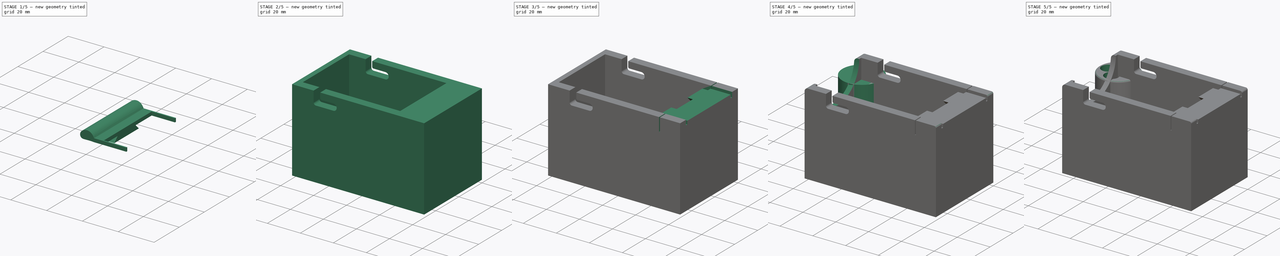
[diagram: build sequence overview — one tinted view per stage of 5, left to right]
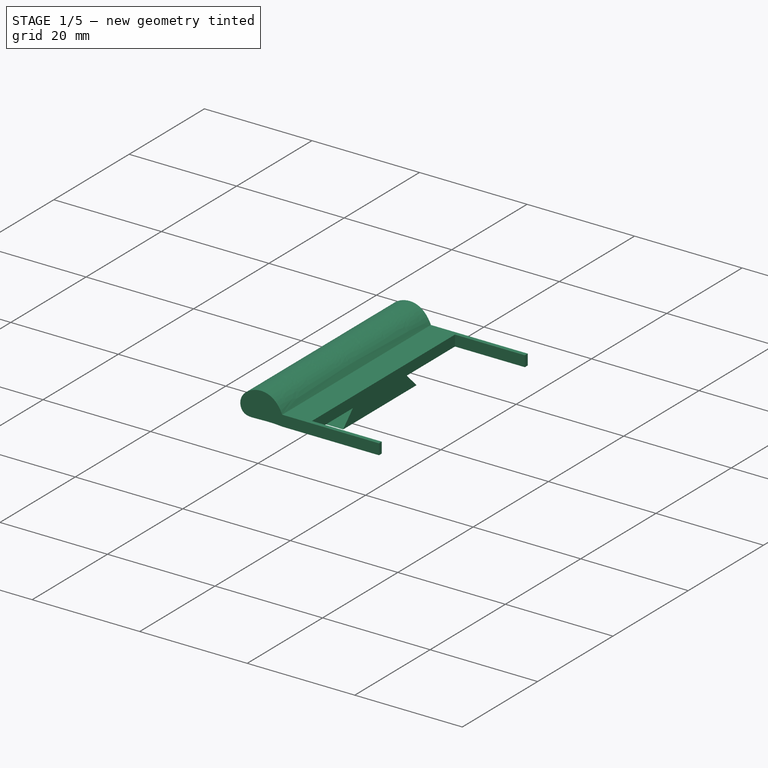
[diagram: stage 1 of 5 — iso view after this stage's code; geometry added in this stage tinted green]
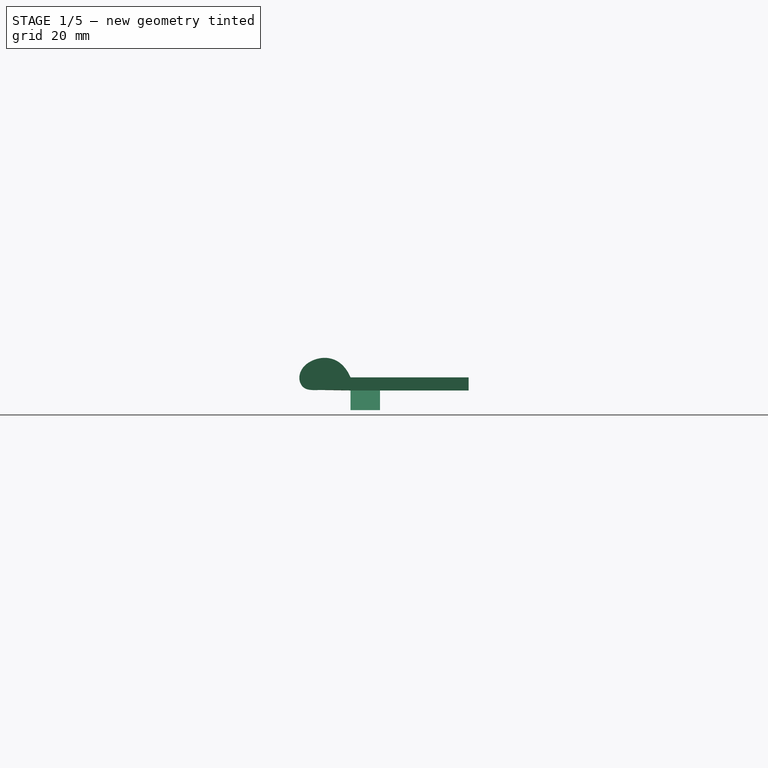
[diagram: stage 1 of 5 — front view after this stage's code; geometry added in this stage tinted green]
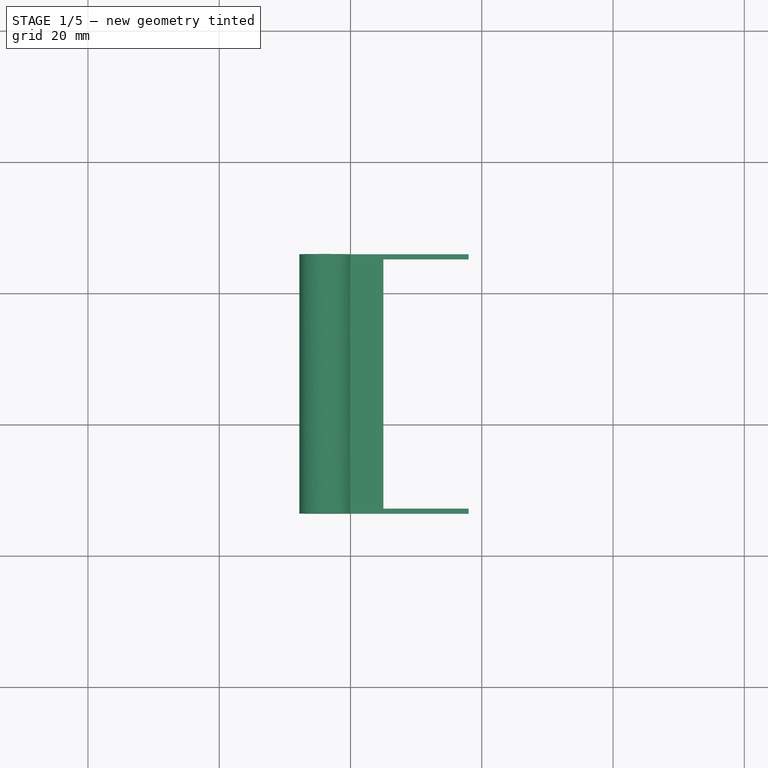
[diagram: stage 1 of 5 — top view after this stage's code; geometry added in this stage tinted green]
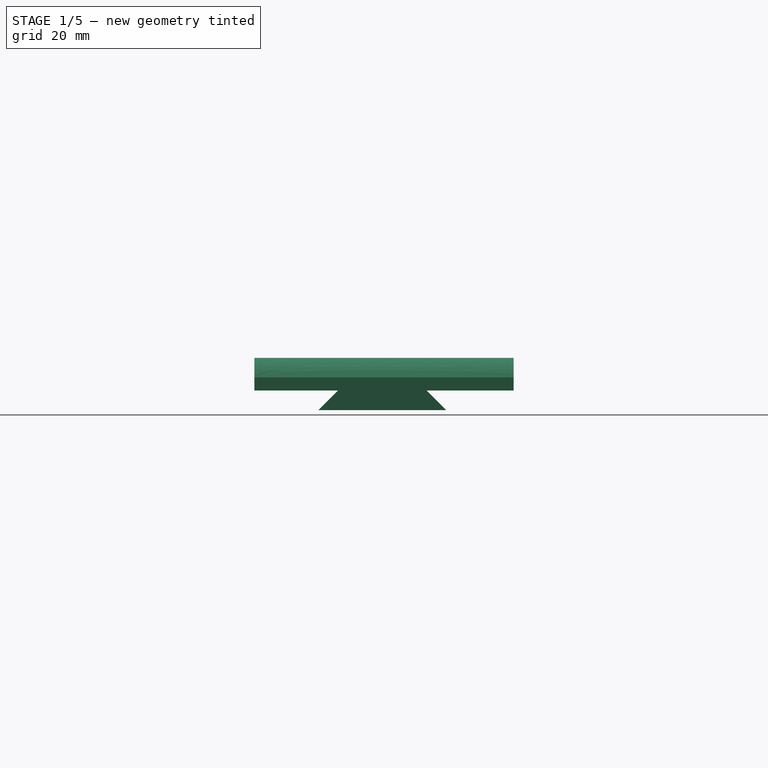
[diagram: stage 1 of 5 — right view after this stage's code; geometry added in this stage tinted green]
FCSTD DOCUMENT  (FreeCAD 1.0R39285 (Git))
Label: tape_cutter
License: All rights reserved
objects: Sketcher::SketchObject×16, PartDesign::Pad×10, PartDesign::Pocket×6, PartDesign::Fillet×3, PartDesign::Body×3, PartDesign::Plane×2, PartDesign::Mirrored×1
note: 96 computed .brp shape members not serialized (recipe doc carries the construction recipe); baked Part::Feature solids carry a one-line shape summary decoded from their .brp

FEATURE [Sketcher::SketchObject] Sketch020
  ArcFitTolerance = 1e-06
  AttachmentSupport = -> [YZ_Plane003]
  FullyConstrained = false
  MakeInternals = false
  MapMode = 5
  Placement = pos=(0,0,0) rot=(0.57735,0.57735,0.57735;2.0944rad)
  sketch-geometry (8):
    g0: LineSegment StartX=-4.33445 StartY=0 StartZ=0 EndX=-23.8345 EndY=0 EndZ=0
    g1: LineSegment StartX=-23.8345 StartY=0 StartZ=0 EndX=-20.8345 EndY=3 EndZ=0
    g2: LineSegment StartX=-20.8345 StartY=3 StartZ=0 EndX=-33.5845 EndY=3 EndZ=0
    g3: LineSegment StartX=-33.5845 StartY=3 StartZ=0 EndX=-33.5845 EndY=5 EndZ=0
    g4: LineSegment StartX=-33.5845 StartY=5 StartZ=0 EndX=5.91555 EndY=5 EndZ=0
    g5: LineSegment StartX=5.91555 StartY=5 StartZ=0 EndX=5.91555 EndY=3 EndZ=0
    g6: LineSegment StartX=5.91555 StartY=3 StartZ=0 EndX=-7.33445 EndY=3 EndZ=0
    g7: LineSegment StartX=-7.33445 StartY=3 StartZ=0 EndX=-4.33445 EndY=0 EndZ=0
  constraints (23):
    c: PointOnObject(g0,g-1)
    c: PointOnObject(g0,g-1)
    c: Coincident(g0,g1)
    c: Coincident(g1,g2)
    c: Horizontal(g2)
    c: Coincident(g2,g3)
    c: Horizontal(g4)
    c: Coincident(g4,g5)
    c: Coincident(g5,g6)
    c: Horizontal(g6)
    c: Coincident(g6,g7)
    c: Coincident(g7,g0)
    c: DistanceX(g0,g0) = 19.5
    c: DistanceX(g4,g4) = 39.5
    c: DistanceX(g3,g0) = 9.75
    c: Vertical(g5)
    c: Vertical(g3)
    c: Angle(g0,g1) = 0.785398
    c: Angle(g7,g0) = 0.785398
    c: Distance(g4,g6) = 2
    c: Distance(g2,g0) = 3
    c: Coincident(g4,g3)
    c: Distance(g4,g2) = 2
FEATURE [PartDesign::Pad] Pad009
  Direction = (1,0,0)
  Length = 4.5
  Length2 = 10
  Placement = pos=(0,0,0) rot=(1,1,1;2.0944rad)
  Profile = -> Sketch020
  ReferenceAxis = -> Sketch020 [N_Axis]
  Refine = true
  Suppressed = false
  Type = 0
FEATURE [Sketcher::SketchObject] Sketch021
  ArcFitTolerance = 1e-06
  AttachmentSupport = -> [Pad009]
  ExternalGeometry = -> [Pad009]
  FullyConstrained = true
  MakeInternals = false
  MapMode = 5
  Placement = pos=(4.5,-1e-15,5e-16) rot=(0.57735,0.57735,0.57735;2.0944rad)
  sketch-geometry (4):
    g0: LineSegment StartX=5.91555 StartY=5 StartZ=0 EndX=-33.5845 EndY=5 EndZ=0
    g1: LineSegment StartX=-33.5845 StartY=5 StartZ=0 EndX=-33.5845 EndY=3 EndZ=0
    g2: LineSegment StartX=-33.5845 StartY=3 StartZ=0 EndX=5.91555 EndY=3 EndZ=0
    g3: LineSegment StartX=5.91555 StartY=3 StartZ=0 EndX=5.91555 EndY=5 EndZ=0
  constraints (10):
    c: Coincident(g0,g1)
    c: Coincident(g1,g2)
    c: Coincident(g2,g3)
    c: Coincident(g3,g0)
    c: Horizontal(g0)
    c: Horizontal(g2)
    c: Vertical(g1)
    c: Vertical(g3)
    c: Coincident(g0,g-4)
    c: Coincident(g1,g-6)
FEATURE [PartDesign::Pad] Pad010
  BaseFeature = -> Pad009
  Direction = (1,0,0)
  Length = 0.5
  Length2 = 10
  Placement = pos=(0,0,0) rot=(1,1,1;2.0944rad)
  Profile = -> Sketch021
  ReferenceAxis = -> Sketch021 [N_Axis]
  Refine = true
  Suppressed = false
  Type = 0
FEATURE [Sketcher::SketchObject] Sketch022
  ArcFitTolerance = 1e-06
  AttachmentSupport = -> [Pad010]
  ExternalGeometry = -> [Pad010]
  FullyConstrained = true
  MakeInternals = false
  MapMode = 5
  Placement = pos=(5,-1.1e-15,6e-16) rot=(0.57735,0.57735,0.57735;2.0944rad)
  sketch-geometry (8):
    g0: LineSegment StartX=-33.5845 StartY=5 StartZ=0 EndX=-32.8345 EndY=5 EndZ=0
    g1: LineSegment StartX=-33.5845 StartY=5 StartZ=0 EndX=-33.5845 EndY=3 EndZ=0
    g2: LineSegment StartX=-32.8345 StartY=5 StartZ=0 EndX=-32.8345 EndY=3 EndZ=0
    g3: LineSegment StartX=-32.8345 StartY=3 StartZ=0 EndX=-33.5845 EndY=3 EndZ=0
    g4: LineSegment StartX=5.91555 StartY=5 StartZ=0 EndX=5.16555 EndY=5 EndZ=0
    g5: LineSegment StartX=5.16555 StartY=5 StartZ=0 EndX=5.16555 EndY=3 EndZ=0
    g6: LineSegment StartX=5.16555 StartY=3 StartZ=0 EndX=5.91555 EndY=3 EndZ=0
    g7: LineSegment StartX=5.91555 StartY=3 StartZ=0 EndX=5.91555 EndY=5 EndZ=0
  constraints (22):
    c: PointOnObject(g0,g-3)
    c: Coincident(g0,g-4)
    c: Coincident(g1,g0)
    c: Coincident(g0,g2)
    c: Vertical(g2)
    c: Coincident(g2,g3)
    c: Coincident(g3,g1)
    c: Horizontal(g3)
    c: Distance(g1,g1) = 2
    c: DistanceX(g0,g0) = 0.75
    c: Coincident(g4,g5)
    c: Coincident(g5,g6)
    c: Coincident(g6,g7)
    c: Coincident(g7,g4)
    c: Horizontal(g4)
    c: Horizontal(g6)
    c: Vertical(g5)
    c: Vertical(g7)
    c: Coincident(g4,g-3)
    c: DistanceX(g4,g4) = 0.75
    c: Distance(g5,g5) = 2
    c: Distance(g3,g3) = 0.75
FEATURE [PartDesign::Pad] Pad011
  BaseFeature = -> Pad010
  Direction = (1,0,0)
  Length = 13
  Length2 = 10
  Placement = pos=(0,0,0) rot=(1,1,1;2.0944rad)
  Profile = -> Sketch022
  ReferenceAxis = -> Sketch022 [N_Axis]
  Refine = true
  Suppressed = false
  Type = 0
FEATURE [PartDesign::Body] Body  label="main"
  AllowCompound = true
  Group = -> [Sketch,Pad,Sketch001,Pad001,Sketch002,Pad002,Sketch003,Pocket,DatumPlane,Sketch017,Pocket007,Sketch018,Pocket008,Sketch019,Pocket009,Sketch023,Pad012,Sketch025,Pocket010,Fillet,Fillet011]
  Origin = -> Origin
  Placement = pos=(218.63,0,-34.33) rot=(0,0,1;0rad)
  Tip = -> Fillet011
FEATURE [Sketcher::SketchObject] Sketch026
  ArcFitTolerance = 1e-06
  AttachmentSupport = -> [Pad011]
  ExternalGeometry = -> [Pad011]
  FullyConstrained = false
  MakeInternals = false
  MapMode = 5
  Placement = pos=(0,-33.5845,3.7e-15) rot=(0.57735,0.57735,-0.57735;2.0944rad)
  sketch-geometry (12):
    g0: LineSegment StartX=-5 StartY=-5e-15 StartZ=0 EndX=-3 EndY=-3e-15 EndZ=0
    g1-g6: Circle [constr] x6 (B-spline internal-alignment scaffolding for g7; pole/knot coordinates omitted)
    g7: BSplineCurve PolesCount=6 KnotsCount=4 Degree=3 IsPeriodic=0
    g8-g11: GeomPoint [constr] x4 (B-spline internal-alignment scaffolding for g7; pole/knot coordinates omitted)
  constraints (8):
    c: Coincident(g0,g-3)
    c: Coincident(g0,g-4)
    c: Weight(g1) = 1
    c: Equal(g1, g2-g6) x5
    c: InternalAlignment(g1-g6 -> g7) x6
    c: InternalAlignment(g8-g11 -> g7) x4
    c: Coincident(g1,g0)
    c: Coincident(g6,g0)
FEATURE [PartDesign::Pad] Pad013
  BaseFeature = -> Pad011
  Direction = (0,-1,0)
  Length = 39.5
  Length2 = 10
  Placement = pos=(0,0,0) rot=(1,1,1;2.0944rad)
  Profile = -> Sketch026
  ReferenceAxis = -> Sketch026 [N_Axis]
  Refine = true
  Reversed = true
  Suppressed = false
  Type = 0
FEATURE [PartDesign::Body] Body003  label="locker"
  AllowCompound = false
  Group = -> [Sketch020,Pad009,Sketch021,Pad010,Sketch022,Pad011,Sketch026,Pad013]
  Origin = -> Origin003
  Placement = pos=(280.67,-11.14,9.69) rot=(0,0,1;0rad)
  Tip = -> Pad013
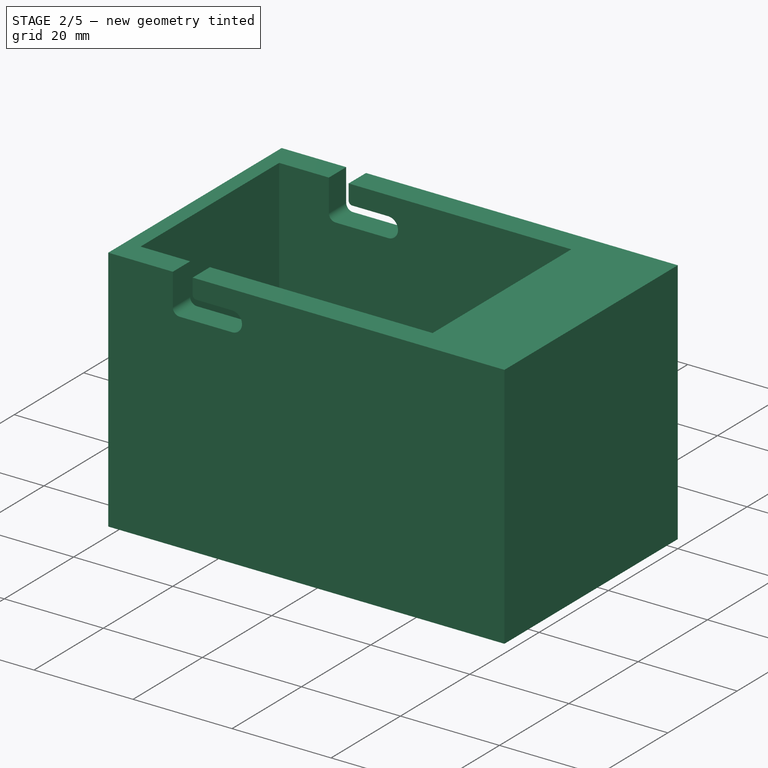
[diagram: stage 2 of 5 — iso view after this stage's code; geometry added in this stage tinted green]
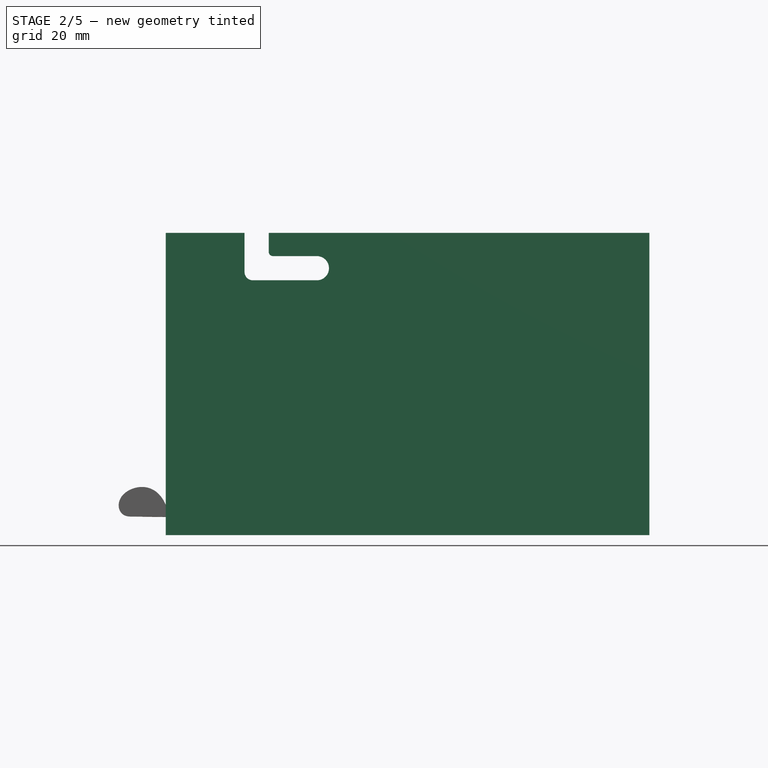
[diagram: stage 2 of 5 — front view after this stage's code; geometry added in this stage tinted green]
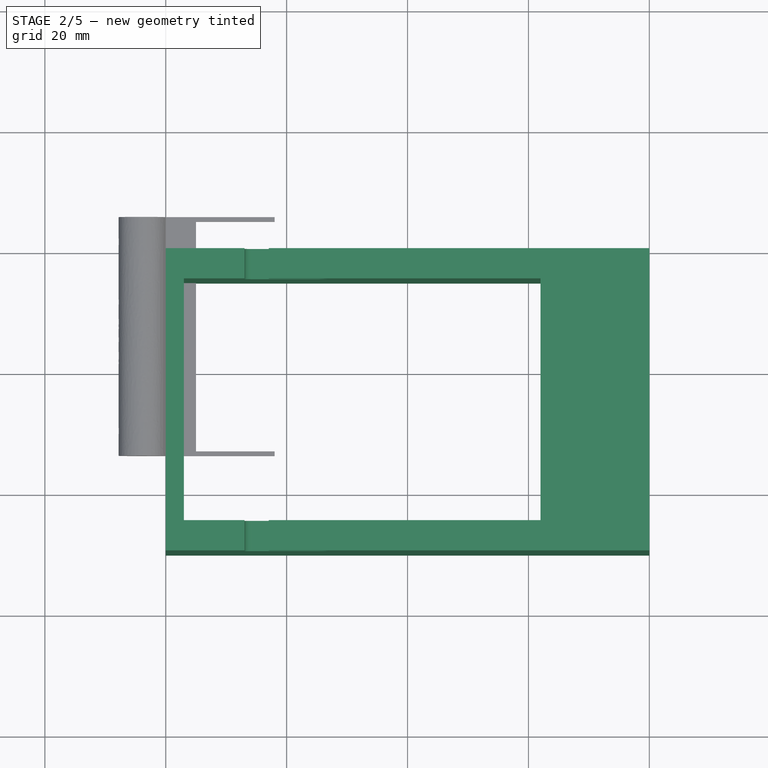
[diagram: stage 2 of 5 — top view after this stage's code; geometry added in this stage tinted green]
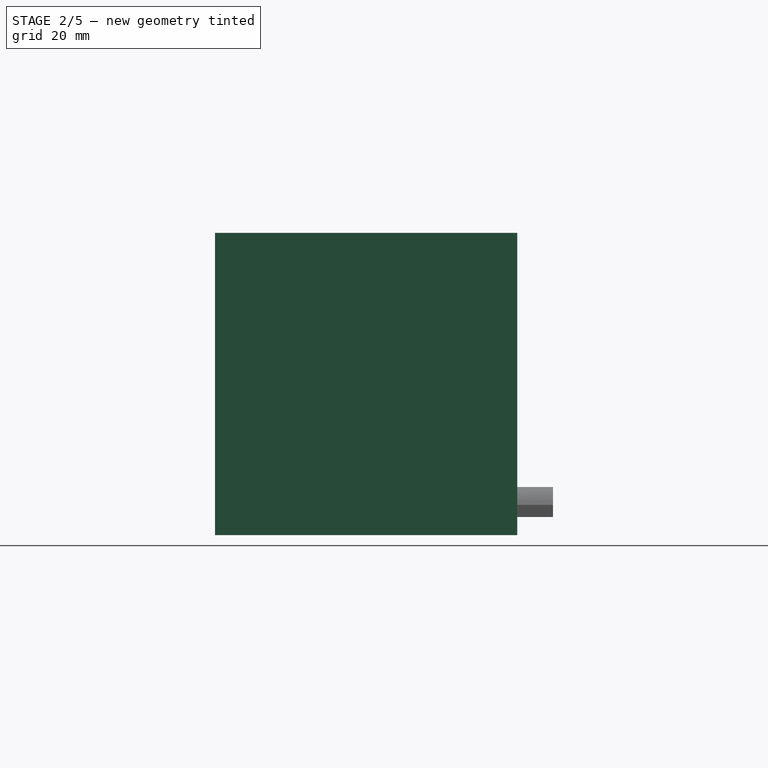
[diagram: stage 2 of 5 — right view after this stage's code; geometry added in this stage tinted green]
FEATURE [Sketcher::SketchObject] Sketch
  ArcFitTolerance = 1e-06
  AttachmentSupport = -> [XZ_Plane]
  FullyConstrained = true
  MakeInternals = false
  MapMode = 5
  Placement = pos=(0,0,0) rot=(1,0,0;1.5708rad)
  sketch-geometry (4):
    g0: LineSegment StartX=0 StartY=0 StartZ=0 EndX=80 EndY=0 EndZ=0
    g1: LineSegment StartX=80 StartY=0 StartZ=0 EndX=80 EndY=50 EndZ=0
    g2: LineSegment StartX=80 StartY=50 StartZ=0 EndX=0 EndY=50 EndZ=0
    g3: LineSegment StartX=0 StartY=50 StartZ=0 EndX=0 EndY=0 EndZ=0
  constraints (11):
    c: Coincident(g0,g1)
    c: Coincident(g1,g2)
    c: Coincident(g2,g3)
    c: Coincident(g3,g0)
    c: Horizontal(g0)
    c: Horizontal(g2)
    c: Vertical(g1)
    c: Vertical(g3)
    c: Distance(g1,g3) = 80
    c: Distance(g0,g2) = 50
    c: Coincident(g0,g-1)
FEATURE [PartDesign::Pad] Pad
  Direction = (0,-1,2e-16)
  Length = 5
  Length2 = 10
  Placement = pos=(0,0,0) rot=(1,0,0;1.5708rad)
  Profile = -> Sketch
  ReferenceAxis = -> Sketch [N_Axis]
  Refine = true
  Suppressed = false
  Type = 0
FEATURE [Sketcher::SketchObject] Sketch001
  ArcFitTolerance = 1e-06
  AttachmentSupport = -> [Pad]
  ExternalGeometry = -> [Pad]
  FullyConstrained = true
  MakeInternals = false
  MapMode = 5
  Placement = pos=(0,-5,0) rot=(1,0,0;1.5708rad)
  sketch-geometry (15):
    g0: LineSegment StartX=0 StartY=50 StartZ=0 EndX=0 EndY=0 EndZ=0
    g1: LineSegment StartX=0 StartY=0 StartZ=0 EndX=3 EndY=0 EndZ=0
    g2: LineSegment StartX=3 StartY=0 StartZ=0 EndX=3 EndY=50 EndZ=0
    g3: LineSegment StartX=3 StartY=50 StartZ=0 EndX=0 EndY=50 EndZ=0
    g4: LineSegment StartX=62 StartY=50 StartZ=0 EndX=80 EndY=50 EndZ=0
    g5: LineSegment StartX=80 StartY=50 StartZ=0 EndX=80 EndY=0 EndZ=0
    g6: LineSegment StartX=77 StartY=0 StartZ=0 EndX=77 EndY=15 EndZ=0
    g7: LineSegment StartX=77 StartY=0 StartZ=0 EndX=80 EndY=0 EndZ=0
    g8: Circle [constr] CenterX=62 CenterY=41 CenterZ=0 NormalX=0 NormalY=0 NormalZ=1 AngleXU=0 Radius=1
    g9: Circle [constr] CenterX=77 CenterY=41 CenterZ=0 NormalX=0 NormalY=0 NormalZ=1 AngleXU=0 Radius=1
    g10: Circle [constr] CenterX=77 CenterY=15 CenterZ=0 NormalX=0 NormalY=0 NormalZ=1 AngleXU=0 Radius=1
    g11: BSplineCurve PolesCount=3 KnotsCount=2 Degree=2 IsPeriodic=0
    g12: GeomPoint [constr] X=62 Y=41 Z=0
    g13: GeomPoint [constr] X=77 Y=15 Z=0
    g14: LineSegment StartX=62 StartY=50 StartZ=0 EndX=62 EndY=41 EndZ=0
  constraints (38):
    c: Coincident(g0,g1)
    c: Coincident(g1,g2)
    c: Coincident(g2,g3)
    c: Coincident(g3,g0)
    c: Vertical(g0)
    c: Vertical(g2)
    c: Horizontal(g1)
    c: Horizontal(g3)
    c: Distance(g0,g2) = 3
    c: Coincident(g0,g-3)
    c: PointOnObject(g1,g-1)
    c: PointOnObject(g4,g-3)
    c: PointOnObject(g5,g-1)
    c: Vertical(g5)
    c: PointOnObject(g6,g-1)
    c: Vertical(g6)
    c: Distance(g5,g6) = 3
    c: DistanceX(g4,g-3) = 18
    c: Coincident(g7,g6)
    c: Coincident(g7,g5)
    c: Weight(g8) = 1
    c: Equal(g8,g9)
    c: Equal(g8,g10)
    c: InternalAlignment(g8,g11)
    c: InternalAlignment(g9,g11)
    c: InternalAlignment(g10,g11)
    c: InternalAlignment(g12,g11)
    c: InternalAlignment(g13,g11)
    c: Tangent(g11,g6) = 1.5708
    c: Coincident(g11,g6)
    c: Horizontal(g9,g11)
    c: Distance(g6,g6) = 15
    c: Coincident(g14,g4)
    c: Coincident(g14,g11)
    c: Vertical(g14)
    c: Coincident(g4,g5)
    c: Coincident(g4,g-3)
    c: DistanceY(g14,g14) = 9
FEATURE [PartDesign::Pad] Pad001
  BaseFeature = -> Pad
  Direction = (0,-1,2e-16)
  Length = 40
  Length2 = 10
  Placement = pos=(0,0,0) rot=(1,0,0;1.5708rad)
  Profile = -> Sketch001
  ReferenceAxis = -> Sketch001 [N_Axis]
  Refine = true
  Suppressed = false
  Type = 0
FEATURE [Sketcher::SketchObject] Sketch002
  ArcFitTolerance = 1e-06
  AttachmentSupport = -> [Pad001]
  ExternalGeometry = -> [Pad001]
  FullyConstrained = true
  MakeInternals = false
  MapMode = 5
  Placement = pos=(0,-45,1e-14) rot=(1,0,0;1.5708rad)
  sketch-geometry (4):
    g0: LineSegment StartX=0 StartY=50 StartZ=0 EndX=0 EndY=0 EndZ=0
    g1: LineSegment StartX=0 StartY=0 StartZ=0 EndX=80 EndY=0 EndZ=0
    g2: LineSegment StartX=80 StartY=0 StartZ=0 EndX=80 EndY=50 EndZ=0
    g3: LineSegment StartX=80 StartY=50 StartZ=0 EndX=0 EndY=50 EndZ=0
  constraints (10):
    c: Coincident(g0,g1)
    c: Coincident(g1,g2)
    c: Coincident(g2,g3)
    c: Coincident(g3,g0)
    c: Vertical(g0)
    c: Vertical(g2)
    c: Horizontal(g1)
    c: Horizontal(g3)
    c: Coincident(g0,g-3)
    c: Coincident(g1,g-4)
FEATURE [PartDesign::Pad] Pad002
  BaseFeature = -> Pad001
  Direction = (0,-1,2e-16)
  Length = 5
  Length2 = 10
  Placement = pos=(0,0,0) rot=(1,0,0;1.5708rad)
  Profile = -> Sketch002
  ReferenceAxis = -> Sketch002 [N_Axis]
  Refine = true
  Suppressed = false
  Type = 0
FEATURE [Sketcher::SketchObject] Sketch003
  ArcFitTolerance = 1e-06
  AttachmentSupport = -> [Pad002]
  ExternalGeometry = -> [Pad002]
  FullyConstrained = false
  MakeInternals = false
  MapMode = 5
  Placement = pos=(0,-50,1.42e-14) rot=(1,0,0;1.5708rad)
  sketch-geometry (11):
    g0: GeomPoint [constr] X=25 Y=44.1581 Z=0
    g1: ArcOfCircle CenterX=25 CenterY=44.1581 CenterZ=0 NormalX=0 NormalY=0 NormalZ=1 AngleXU=0 Radius=2 StartAngle=4.71239 EndAngle=7.85398
    g2: LineSegment StartX=13.0319 StartY=50 StartZ=0 EndX=17.0319 EndY=50 EndZ=0
    g3: LineSegment StartX=13.0319 StartY=50 StartZ=0 EndX=13.0319 EndY=43.5252 EndZ=0
    g4: LineSegment StartX=14.3991 StartY=42.1581 StartZ=0 EndX=25 EndY=42.1581 EndZ=0
    g5: LineSegment StartX=17.0319 StartY=50 StartZ=0 EndX=17.0319 EndY=46.8676 EndZ=0
    g6: LineSegment StartX=17.7414 StartY=46.1581 StartZ=0 EndX=25 EndY=46.1581 EndZ=0
    g7: ArcOfCircle CenterX=17.7414 CenterY=46.8676 CenterZ=0 NormalX=0 NormalY=0 NormalZ=1 AngleXU=0 Radius=0.709477 StartAngle=3.14159 EndAngle=4.71239
    g8: GeomPoint [constr] X=17.0319 Y=46.1581 Z=0
    g9: ArcOfCircle CenterX=14.3991 CenterY=43.5252 CenterZ=0 NormalX=0 NormalY=0 NormalZ=1 AngleXU=0 Radius=1.36714 StartAngle=3.14159 EndAngle=4.71239
    g10: GeomPoint [constr] X=13.0319 Y=42.1581 Z=0
  constraints (22):
    c: Distance(g0,g-2) = 25
    c: Diameter(g1) = 4
    c: Coincident(g1,g0)
    c: Distance(g2) = 4
    c: PointOnObject(g2,g-3)
    c: PointOnObject(g2,g-3)
    c: Coincident(g2,g3)
    c: Horizontal(g4)
    c: Coincident(g2,g5)
    c: Vertical(g5)
    c: Vertical(g3)
    c: Horizontal(g6)
    c: Tangent(g6,g1) = 1.5708
    c: Tangent(g4,g1) = -1.5708
    c: PointOnObject(g8,g6)
    c: PointOnObject(g8,g5)
    c: Tangent(g6,g7) = -1.5708
    c: Tangent(g5,g7) = -1.5708
    c: PointOnObject(g10,g4)
    c: PointOnObject(g10,g3)
    c: Tangent(g4,g9) = -1.5708
    c: Tangent(g3,g9) = -1.5708
FEATURE [PartDesign::Pocket] Pocket
  BaseFeature = -> Pad002
  Direction = (0,1,-2e-16)
  Length = 0
  Length2 = 5
  Placement = pos=(0,0,0) rot=(1,0,0;1.5708rad)
  Profile = -> Sketch003
  ReferenceAxis = -> Sketch003 [N_Axis]
  Refine = true
  Suppressed = false
  Type = 3
  UpToFace = -> Pad002 [Face1]
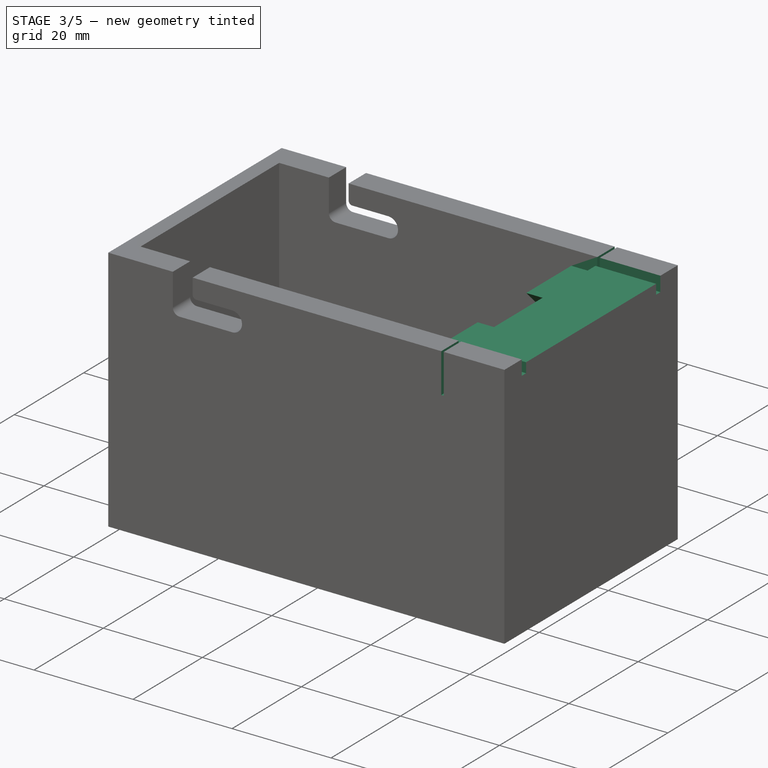
[diagram: stage 3 of 5 — iso view after this stage's code; geometry added in this stage tinted green]
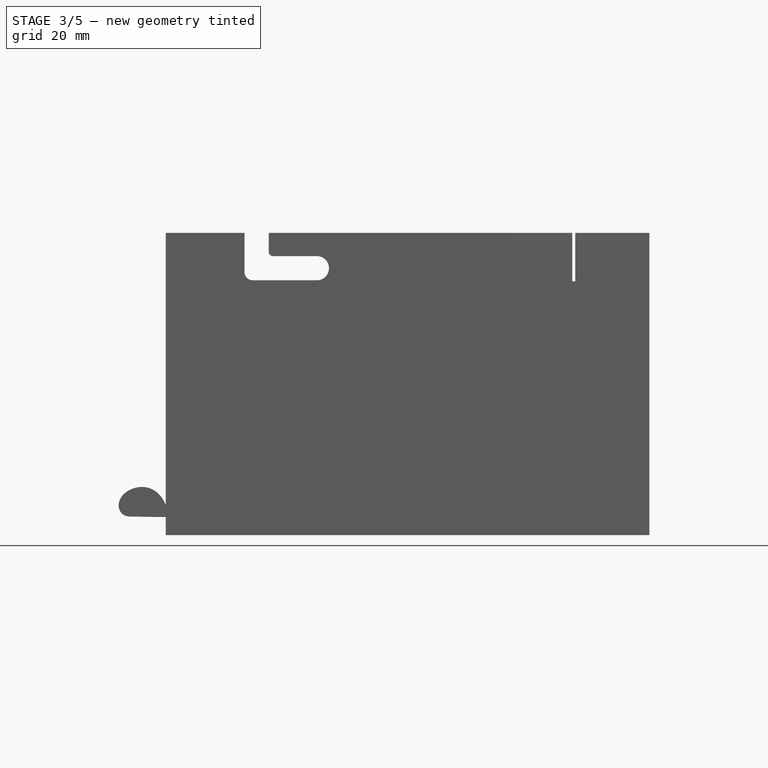
[diagram: stage 3 of 5 — front view after this stage's code; geometry added in this stage tinted green]
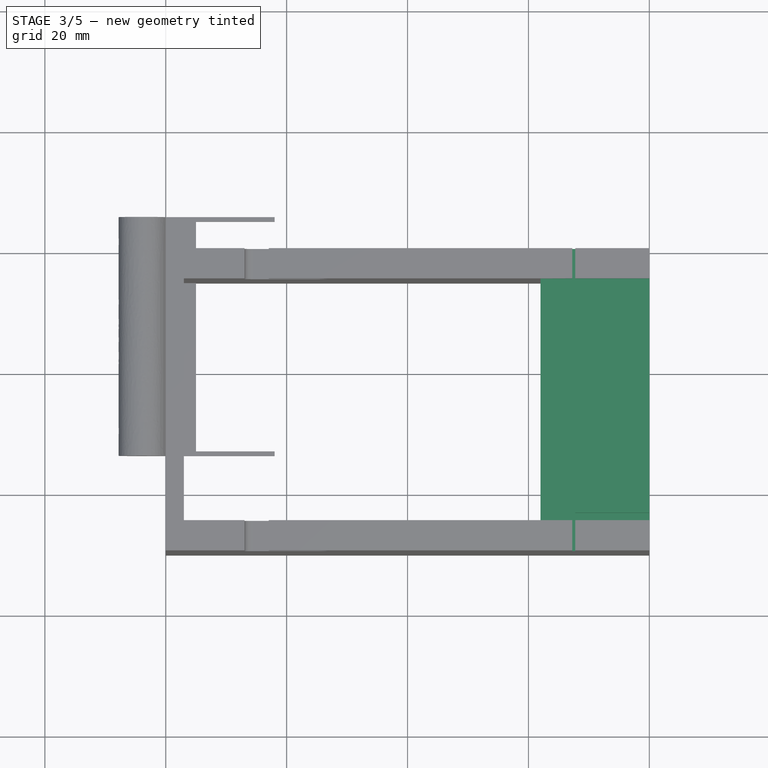
[diagram: stage 3 of 5 — top view after this stage's code; geometry added in this stage tinted green]
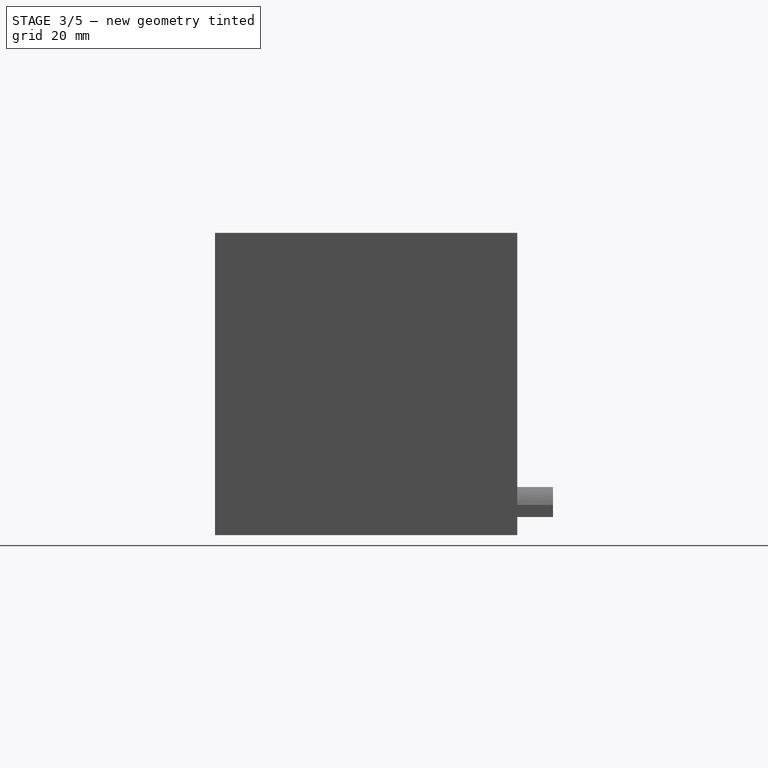
[diagram: stage 3 of 5 — right view after this stage's code; geometry added in this stage tinted green]
FEATURE [PartDesign::Body] Body002  label="stem"
  AllowCompound = false
  Group = -> [Sketch011,Pad007,DatumPlane001,Sketch012,Pad008,Sketch013,Pocket004,Mirrored001,Fillet010]
  Origin = -> Origin002
  Placement = pos=(247.21,153.25,0.24) rot=(1,0,0;1.5708rad)
  Tip = -> Fillet010
FEATURE [Sketcher::SketchObject] Sketch017
  ArcFitTolerance = 1e-06
  AttachmentSupport = -> [Pocket]
  ExternalGeometry = -> [Pocket]
  FullyConstrained = true
  MakeInternals = false
  MapMode = 5
  Placement = pos=(0,9.3e-15,50) rot=(0,0,1;3.14159rad)
  sketch-geometry (4):
    g0: LineSegment StartX=-67.75 StartY=50 StartZ=0 EndX=-67.75 EndY=-7.1e-15 EndZ=0
    g1: LineSegment StartX=-67.75 StartY=-7.1e-15 StartZ=0 EndX=-67.25 EndY=-7.1e-15 EndZ=0
    g2: LineSegment StartX=-67.25 StartY=-7.1e-15 StartZ=0 EndX=-67.25 EndY=50 EndZ=0
    g3: LineSegment StartX=-67.25 StartY=50 StartZ=0 EndX=-67.75 EndY=50 EndZ=0
  constraints (12):
    c: Coincident(g0,g1)
    c: Coincident(g1,g2)
    c: Coincident(g2,g3)
    c: Coincident(g3,g0)
    c: Vertical(g0)
    c: Vertical(g2)
    c: Horizontal(g1)
    c: Horizontal(g3)
    c: PointOnObject(g0,g-3)
    c: DistanceY(g2,g2) = 50
    c: Distance(g3,g3) = 0.5
    c: Distance(g-4,g2) = 5.25
FEATURE [PartDesign::Pocket] Pocket007
  BaseFeature = -> Pocket
  Direction = (0,0,-1)
  Length = 8
  Length2 = 5
  Placement = pos=(0,0,0) rot=(1,0,0;1.5708rad)
  Profile = -> Sketch017
  ReferenceAxis = -> Sketch017 [N_Axis]
  Refine = true
  Suppressed = false
  Type = 0
FEATURE [Sketcher::SketchObject] Sketch018
  ArcFitTolerance = 1e-06
  AttachmentSupport = -> [Pocket007]
  ExternalGeometry = -> [Pocket007]
  FullyConstrained = true
  MakeInternals = false
  MapMode = 5
  Placement = pos=(0,9.3e-15,50) rot=(0,0,1;3.14159rad)
  sketch-geometry (4):
    g0: LineSegment StartX=-62 StartY=45 StartZ=0 EndX=-80 EndY=45 EndZ=0
    g1: LineSegment StartX=-80 StartY=45 StartZ=0 EndX=-80 EndY=5 EndZ=0
    g2: LineSegment StartX=-80 StartY=5 StartZ=0 EndX=-62 EndY=5 EndZ=0
    g3: LineSegment StartX=-62 StartY=5 StartZ=0 EndX=-62 EndY=45 EndZ=0
  constraints (11):
    c: Coincident(g0,g1)
    c: Coincident(g1,g2)
    c: Coincident(g2,g3)
    c: Coincident(g3,g0)
    c: Horizontal(g0)
    c: Horizontal(g2)
    c: Vertical(g1)
    c: Vertical(g3)
    c: Coincident(g0,g-4)
    c: DistanceY(g3,g3) = 40
    c: PointOnObject(g0,g-5)
FEATURE [PartDesign::Pocket] Pocket008
  BaseFeature = -> Pocket007
  Direction = (0,0,-1)
  Length = 3
  Length2 = 5
  Placement = pos=(0,0,0) rot=(1,0,0;1.5708rad)
  Profile = -> Sketch018
  ReferenceAxis = -> Sketch018 [N_Axis]
  Refine = true
  Suppressed = false
  Type = 0
FEATURE [Sketcher::SketchObject] Sketch019
  ArcFitTolerance = 1e-06
  AttachmentSupport = -> [Pocket008]
  ExternalGeometry = -> [Pocket008]
  FullyConstrained = true
  MakeInternals = false
  MapMode = 5
  Placement = pos=(62,0,0) rot=(0.707107,0,-0.707107;3.14159rad)
  sketch-geometry (4):
    g0: LineSegment StartX=-44 StartY=15 StartZ=0 EndX=-44 EndY=35 EndZ=0
    g1: LineSegment StartX=-44 StartY=35 StartZ=0 EndX=-47 EndY=32 EndZ=0
    g2: LineSegment StartX=-47 StartY=18 StartZ=0 EndX=-44 EndY=15 EndZ=0
    g3: LineSegment StartX=-47 StartY=18 StartZ=0 EndX=-47 EndY=32 EndZ=0
  constraints (12):
    c: Vertical(g0)
    c: Coincident(g0,g1)
    c: PointOnObject(g1,g-3)
    c: PointOnObject(g2,g-3)
    c: Coincident(g2,g0)
    c: DistanceY(g0,g0) = 20
    c: Angle(g1,g0) = 0.785398
    c: Angle(g0,g2) = 0.785398
    c: Coincident(g3,g2)
    c: Coincident(g3,g1)
    c: DistanceY(g0,g-3) = 10
    c: Distance(g3,g0) = 3
FEATURE [PartDesign::Pocket] Pocket009
  BaseFeature = -> Pocket008
  Direction = (1,0,2e-16)
  Length = 4.5
  Length2 = 5
  Placement = pos=(0,0,0) rot=(1,0,0;1.5708rad)
  Profile = -> Sketch019
  ReferenceAxis = -> Sketch019 [N_Axis]
  Refine = true
  Suppressed = false
  Type = 0
FEATURE [Sketcher::SketchObject] Sketch023
  ArcFitTolerance = 1e-06
  AttachmentSupport = -> [Pocket009]
  ExternalGeometry = -> [Pocket009]
  FullyConstrained = true
  MakeInternals = false
  MapMode = 5
  Placement = pos=(0,0,47) rot=(0,0,1;3.14159rad)
  sketch-geometry (4):
    g0: LineSegment StartX=-80 StartY=43.75 StartZ=0 EndX=-80 EndY=6.25 EndZ=0
    g1: LineSegment StartX=-80 StartY=6.25 StartZ=0 EndX=-67.75 EndY=6.25 EndZ=0
    g2: LineSegment StartX=-67.75 StartY=6.25 StartZ=0 EndX=-67.75 EndY=43.75 EndZ=0
    g3: LineSegment StartX=-67.75 StartY=43.75 StartZ=0 EndX=-80 EndY=43.75 EndZ=0
  constraints (12):
    c: Coincident(g0,g1)
    c: Coincident(g1,g2)
    c: Coincident(g2,g3)
    c: Coincident(g3,g0)
    c: Vertical(g0)
    c: Vertical(g2)
    c: Horizontal(g1)
    c: Horizontal(g3)
    c: PointOnObject(g0,g-3)
    c: Distance(g3,g3) = 12.25
    c: DistanceY(g0,g0) = 37.5
    c: Distance(g0,g-5) = 6.25
FEATURE [PartDesign::Pad] Pad012
  BaseFeature = -> Pocket009
  Direction = (0,0,1)
  Length = 2
  Length2 = 10
  Placement = pos=(0,0,0) rot=(1,0,0;1.5708rad)
  Profile = -> Sketch023
  ReferenceAxis = -> Sketch023 [N_Axis]
  Refine = true
  Suppressed = false
  Type = 0
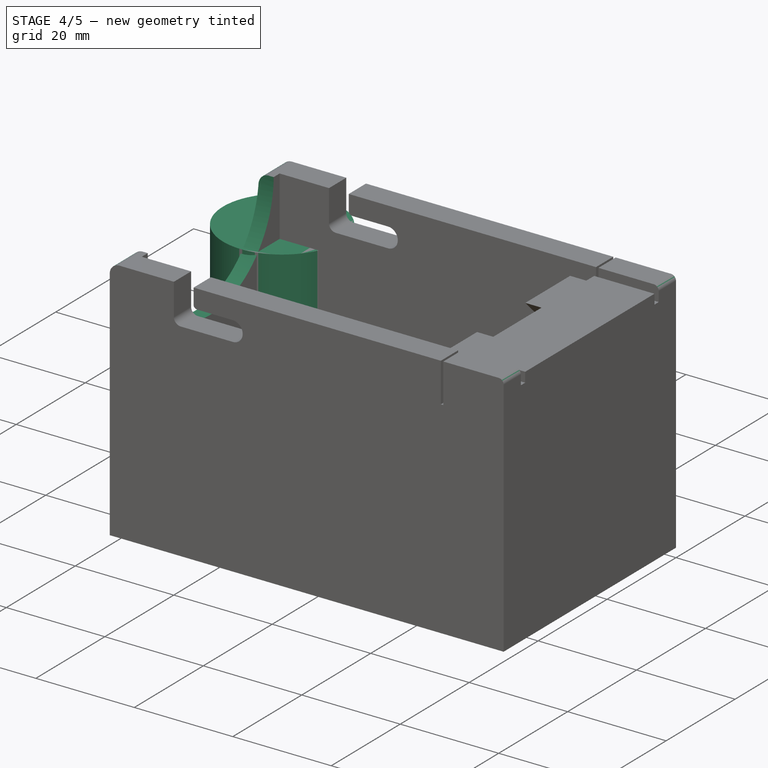
[diagram: stage 4 of 5 — iso view after this stage's code; geometry added in this stage tinted green]
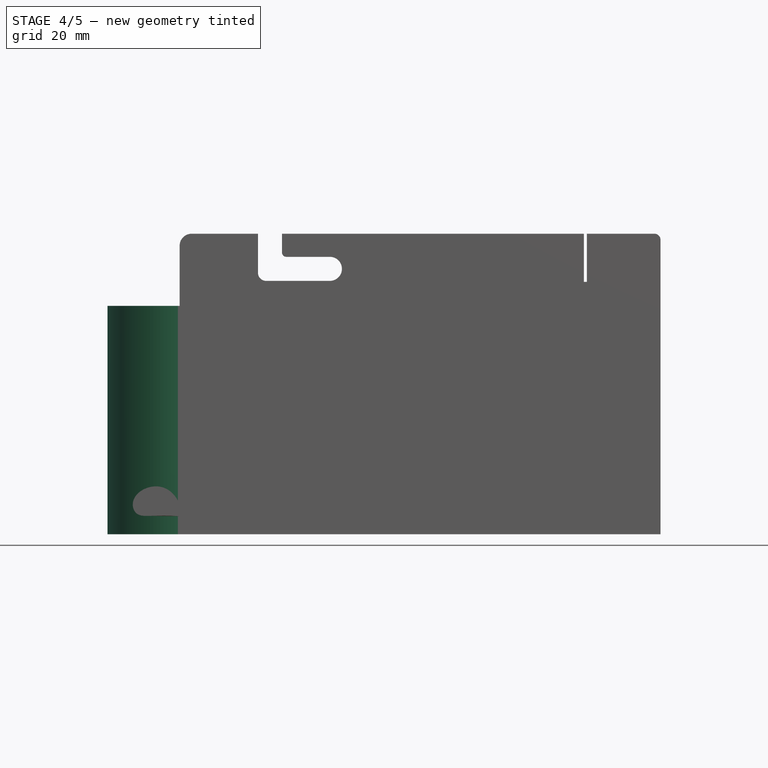
[diagram: stage 4 of 5 — front view after this stage's code; geometry added in this stage tinted green]
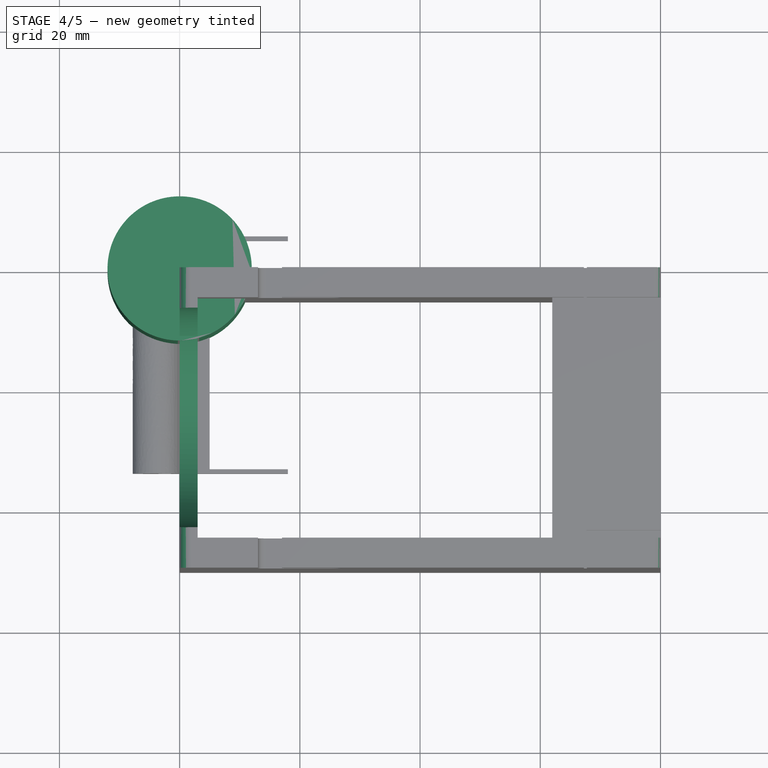
[diagram: stage 4 of 5 — top view after this stage's code; geometry added in this stage tinted green]
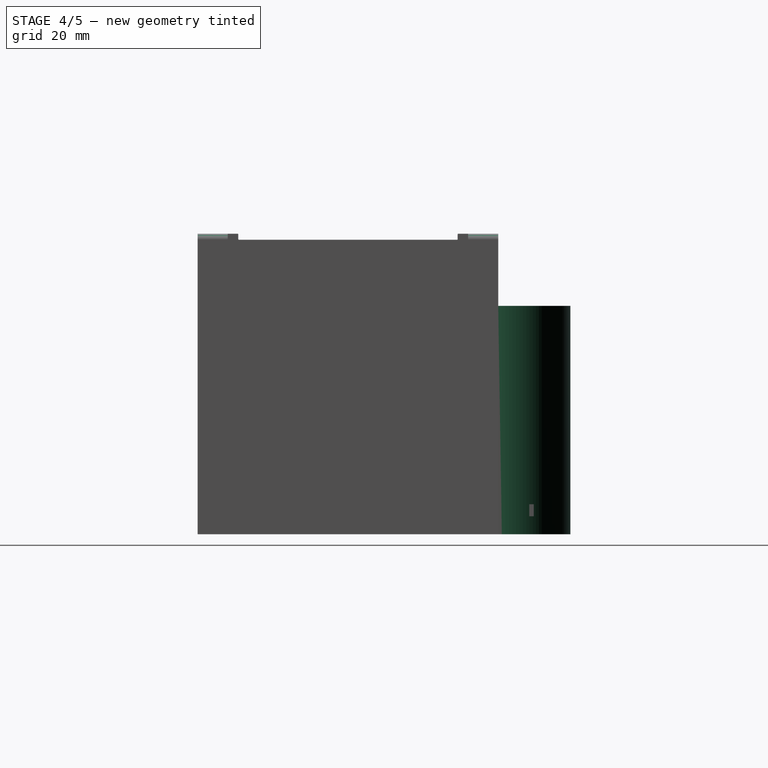
[diagram: stage 4 of 5 — right view after this stage's code; geometry added in this stage tinted green]
FEATURE [PartDesign::Plane] DatumPlane
  AttachmentOffset = pos=(0,0,25) rot=(0,0,1;0rad)
  AttachmentSupport = -> [XZ_Plane]
  Length = 122.748
  MapMode = 5
  Placement = pos=(0,-25,5.6e-15) rot=(1,0,0;1.5708rad)
  ResizeMode = 0
  Width = 92.7482
FEATURE [Sketcher::SketchObject] Sketch011
  ArcFitTolerance = 1e-06
  AttachmentSupport = -> [XY_Plane002]
  FullyConstrained = true
  MakeInternals = false
  MapMode = 5
  sketch-geometry (1):
    g0: Circle CenterX=0 CenterY=0 CenterZ=0 NormalX=0 NormalY=0 NormalZ=1 AngleXU=0 Radius=12
  constraints (2):
    c: Diameter(g0) = 24
    c: Coincident(g0,g-1)
FEATURE [PartDesign::Pad] Pad007
  Direction = (0,0,1)
  Length = 38
  Length2 = 10
  Profile = -> Sketch011
  ReferenceAxis = -> Sketch011 [N_Axis]
  Refine = true
  Suppressed = false
  Type = 0
FEATURE [Sketcher::SketchObject] Sketch025
  ArcFitTolerance = 1e-06
  AttachmentSupport = -> [Pad012]
  ExternalGeometry = -> [Pad012]
  FullyConstrained = false
  MakeInternals = false
  MapMode = 5
  Placement = pos=(0,0,0) rot=(0.707107,0,-0.707107;3.14159rad)
  sketch-geometry (2):
    g0: ArcOfCircle CenterX=-50 CenterY=25 CenterZ=0 NormalX=0 NormalY=0 NormalZ=1 AngleXU=0 Radius=18.2616 StartAngle=4.71239 EndAngle=7.85398
    g1: LineSegment StartX=-50 StartY=6.73838 StartZ=0 EndX=-50 EndY=43.2616 EndZ=0
  constraints (5):
    c: Symmetric(g-3,g-3,g0)
    c: PointOnObject(g0,g-3)
    c: PointOnObject(g0,g-3)
    c: Coincident(g1,g0)
    c: Coincident(g1,g0)
FEATURE [PartDesign::Pocket] Pocket010
  BaseFeature = -> Pad012
  Direction = (1,0,2e-16)
  Length = 5
  Length2 = 5
  Placement = pos=(0,0,0) rot=(1,0,0;1.5708rad)
  Profile = -> Sketch025
  ReferenceAxis = -> Sketch025 [N_Axis]
  Refine = true
  Suppressed = false
  Type = 2
FEATURE [PartDesign::Fillet] Fillet
  Base = -> Pocket010 [Edge75,Edge73]
  BaseFeature = -> Pocket010
  Placement = pos=(0,0,0) rot=(1,0,0;1.5708rad)
  Radius = 2
  Refine = true
  SupportTransform = false
  Suppressed = false
  UseAllEdges = false
FEATURE [PartDesign::Fillet] Fillet011
  Base = -> Fillet [Edge49,Edge41]
  BaseFeature = -> Fillet
  Placement = pos=(0,0,0) rot=(1,0,0;1.5708rad)
  Radius = 1
  Refine = true
  SupportTransform = false
  Suppressed = false
  UseAllEdges = false
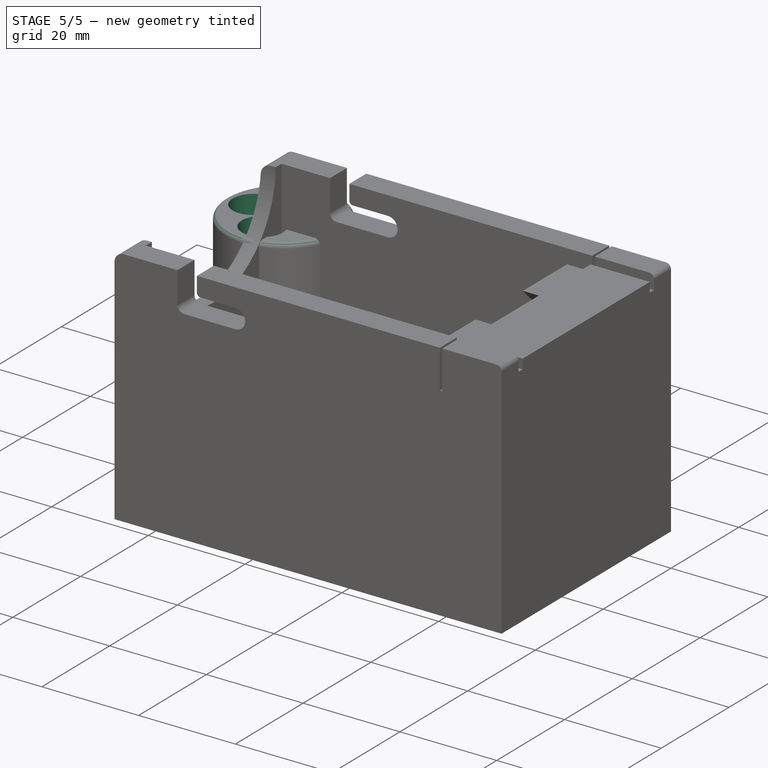
[diagram: stage 5 of 5 — iso view after this stage's code; geometry added in this stage tinted green]
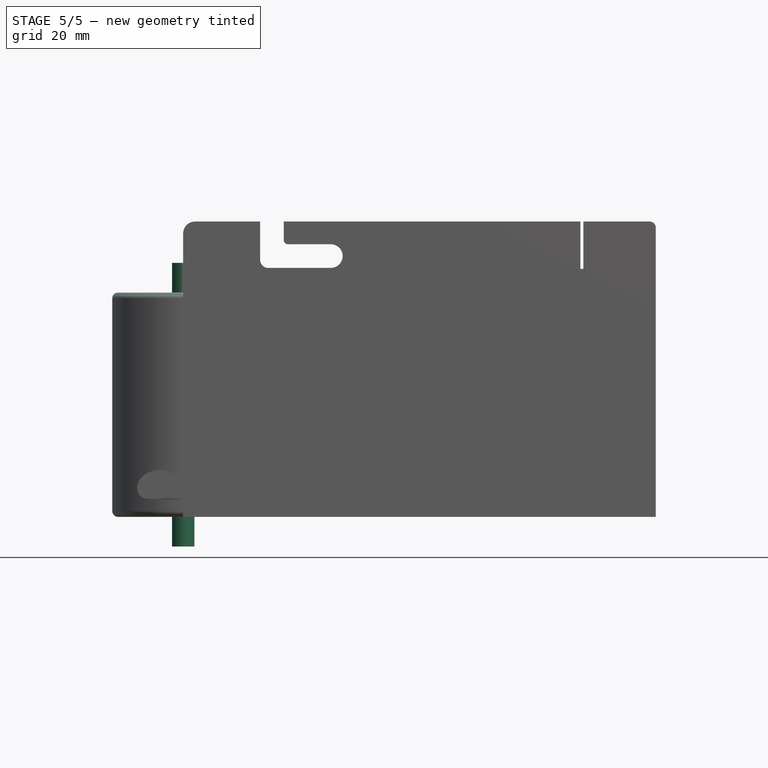
[diagram: stage 5 of 5 — front view after this stage's code; geometry added in this stage tinted green]
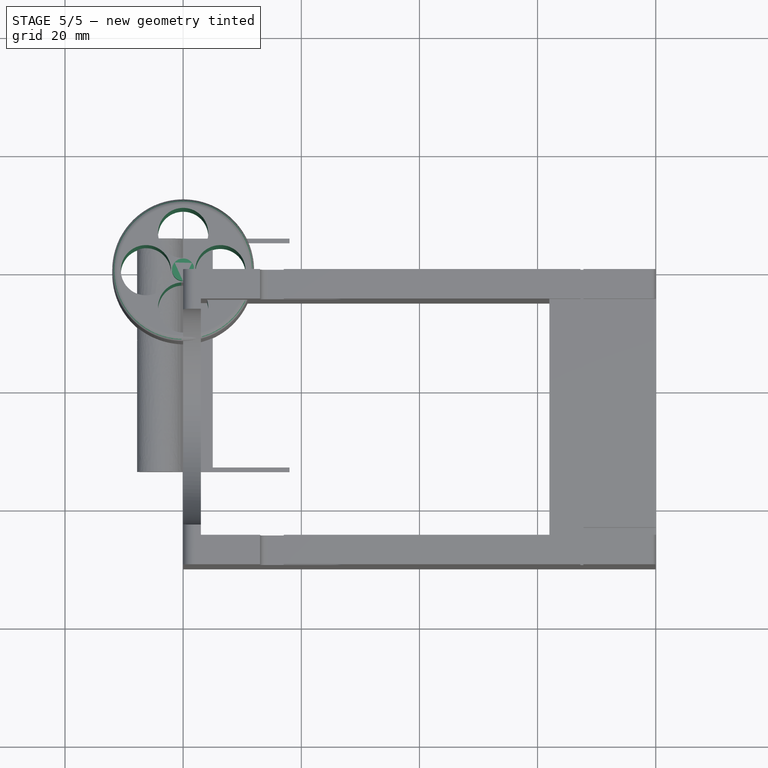
[diagram: stage 5 of 5 — top view after this stage's code; geometry added in this stage tinted green]
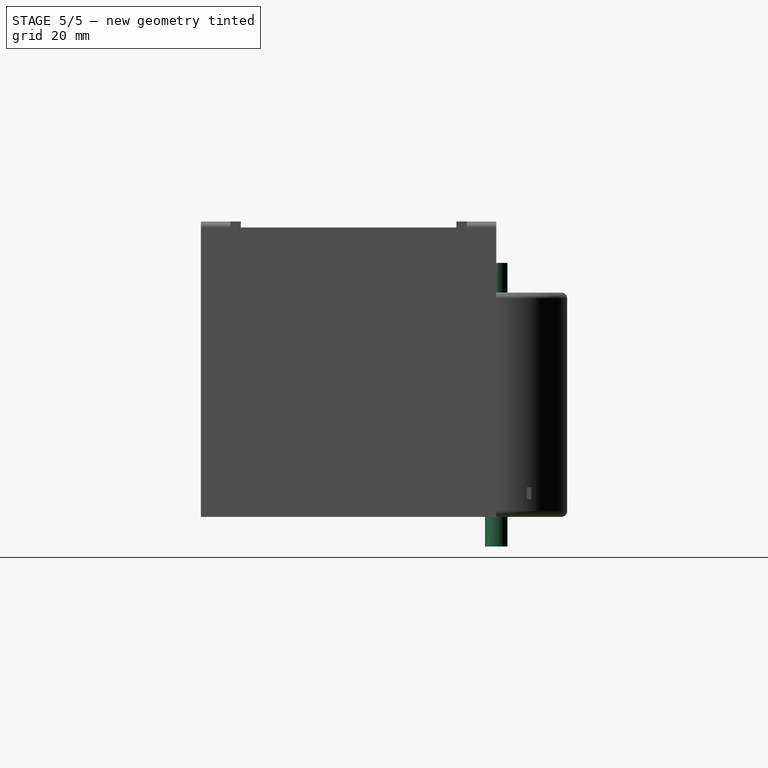
[diagram: stage 5 of 5 — right view after this stage's code; geometry added in this stage tinted green]
FEATURE [PartDesign::Plane] DatumPlane001
  AttachmentOffset = pos=(0,0,19) rot=(0,0,1;0rad)
  AttachmentSupport = -> [XY_Plane002]
  Length = 60
  MapMode = 5
  Placement = pos=(0,0,19) rot=(0,0,1;0rad)
  ResizeMode = 0
  Width = 60
FEATURE [Sketcher::SketchObject] Sketch012
  ArcFitTolerance = 1e-06
  AttachmentSupport = -> [Pad007]
  FullyConstrained = true
  MakeInternals = false
  MapMode = 5
  Placement = pos=(0,0,38) rot=(0,0,1;0rad)
  sketch-geometry (1):
    g0: Circle CenterX=0 CenterY=0 CenterZ=0 NormalX=0 NormalY=0 NormalZ=1 AngleXU=0 Radius=1.9
  constraints (2):
    c: Diameter(g0) = 3.8
    c: Coincident(g0,g-1)
FEATURE [PartDesign::Pad] Pad008
  BaseFeature = -> Pad007
  Direction = (0,0,1)
  Length = 5
  Length2 = 10
  Profile = -> Sketch012
  ReferenceAxis = -> Sketch012 [N_Axis]
  Refine = true
  Suppressed = false
  Type = 0
FEATURE [Sketcher::SketchObject] Sketch013
  ArcFitTolerance = 1e-06
  AttachmentSupport = -> [Pad008]
  FullyConstrained = false
  MakeInternals = false
  MapMode = 5
  Placement = pos=(0,0,38) rot=(0,0,1;0rad)
  sketch-geometry (4):
    g0: Circle CenterX=0 CenterY=6.3 CenterZ=0 NormalX=0 NormalY=0 NormalZ=1 AngleXU=0 Radius=4.25
    g1: Circle CenterX=6.3 CenterY=0 CenterZ=0 NormalX=0 NormalY=0 NormalZ=1 AngleXU=0 Radius=4.25
    g2: Circle CenterX=-6.3 CenterY=0 CenterZ=0 NormalX=0 NormalY=0 NormalZ=1 AngleXU=0 Radius=4.25
    g3: Circle CenterX=0 CenterY=-6.3 CenterZ=0 NormalX=0 NormalY=0 NormalZ=1 AngleXU=0 Radius=4.25
  constraints (8):
    c: PointOnObject(g0,g-2)
    c: Distance(g0,g-1) = 6.3
    c: Diameter(g0) = 8.5
    c: PointOnObject(g1,g-1)
    c: DistanceX(g-1,g1) = 6.3
    c: Diameter(g1) = 8.5
    c: Diameter(g2) = 8.5
    c: Diameter(g3) = 8.5
FEATURE [PartDesign::Pocket] Pocket004
  BaseFeature = -> Pad008
  Direction = (0,0,-1)
  Length = 0
  Length2 = 5
  Profile = -> Sketch013
  ReferenceAxis = -> Sketch013 [N_Axis]
  Refine = true
  Suppressed = false
  Type = 3
  UpToFace = -> Pad008 [Face2]
FEATURE [PartDesign::Mirrored] Mirrored001
  BaseFeature = -> Pocket004
  MirrorPlane = -> DatumPlane001
  Originals = -> [Pad008]
  Refine = true
  Suppressed = false
  TransformMode = 0
FEATURE [PartDesign::Fillet] Fillet010
  Base = -> Mirrored001 [Edge3,Edge2]
  BaseFeature = -> Mirrored001
  Radius = 1
  Refine = true
  SupportTransform = false
  Suppressed = false
  UseAllEdges = false
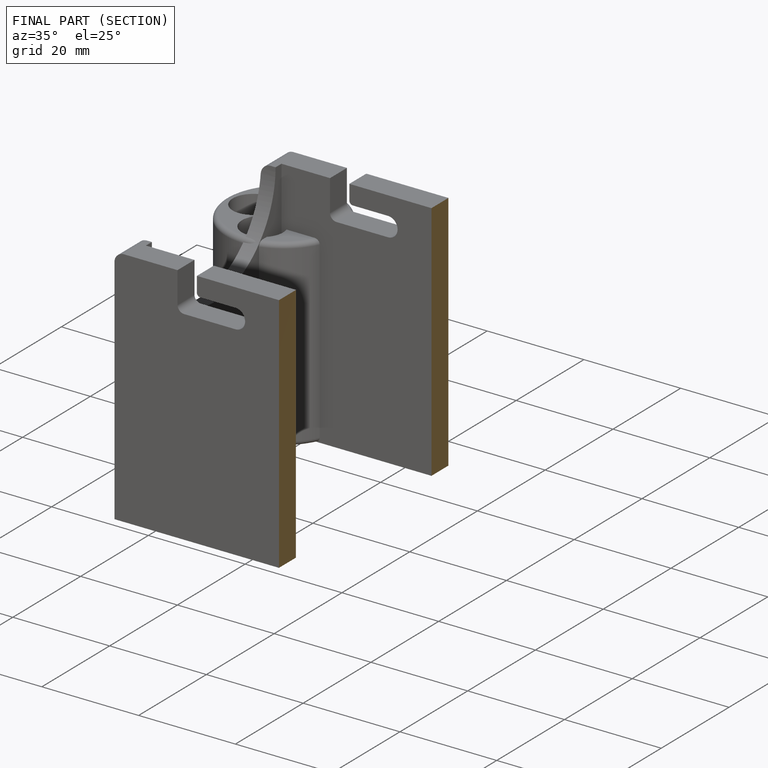
[diagram: finished part — half-section view (interior)]
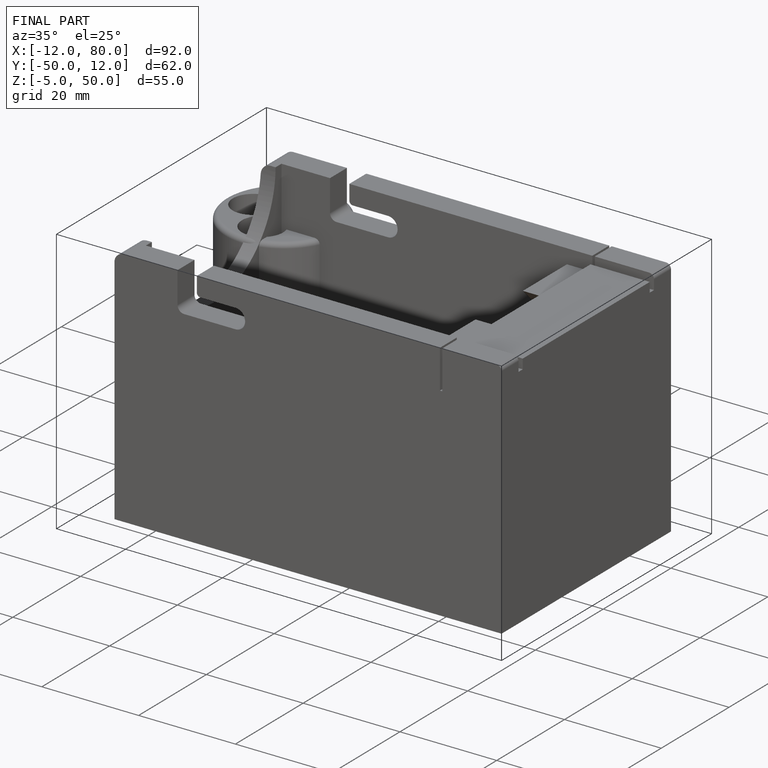
[diagram: finished part — iso view with bounding-box wireframe]
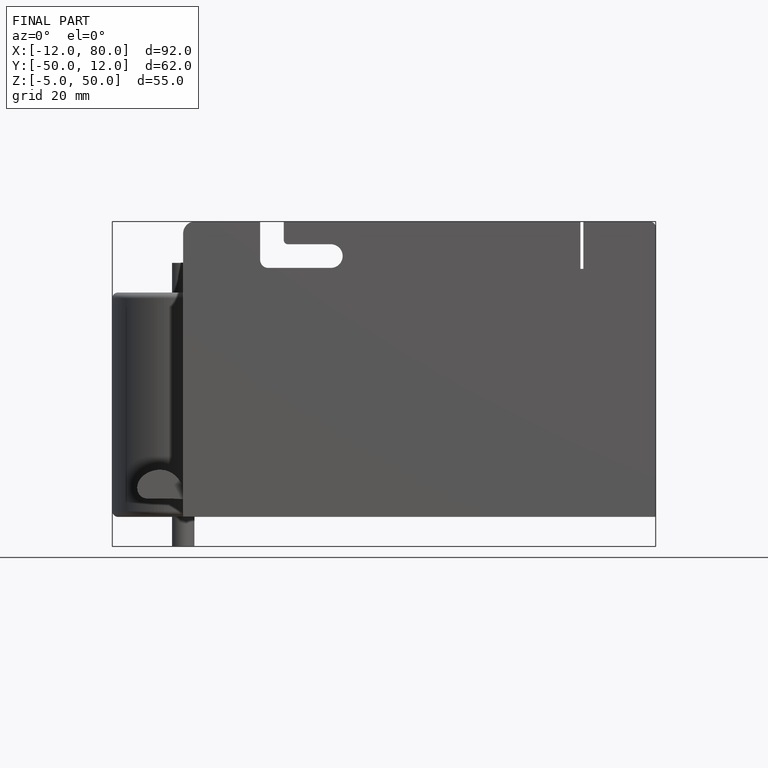
[diagram: finished part — front view with bounding-box wireframe]
